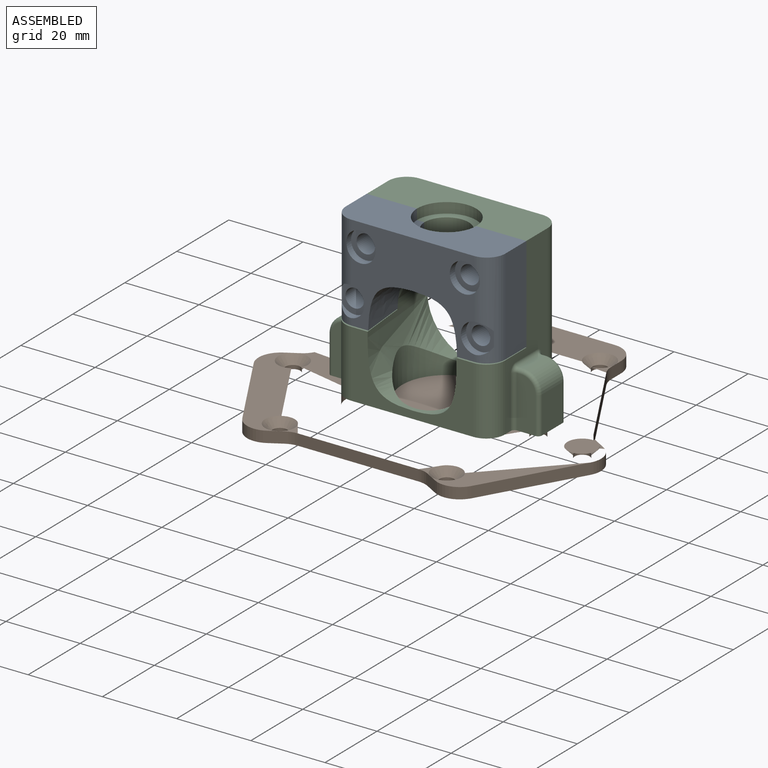
[diagram: assembled view]
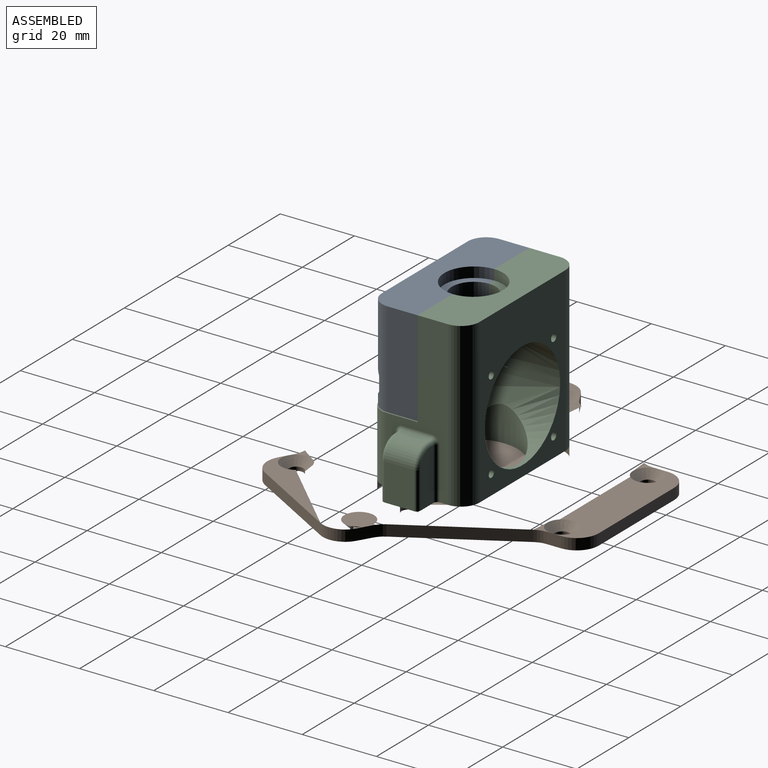
[diagram: assembled view, second angle]
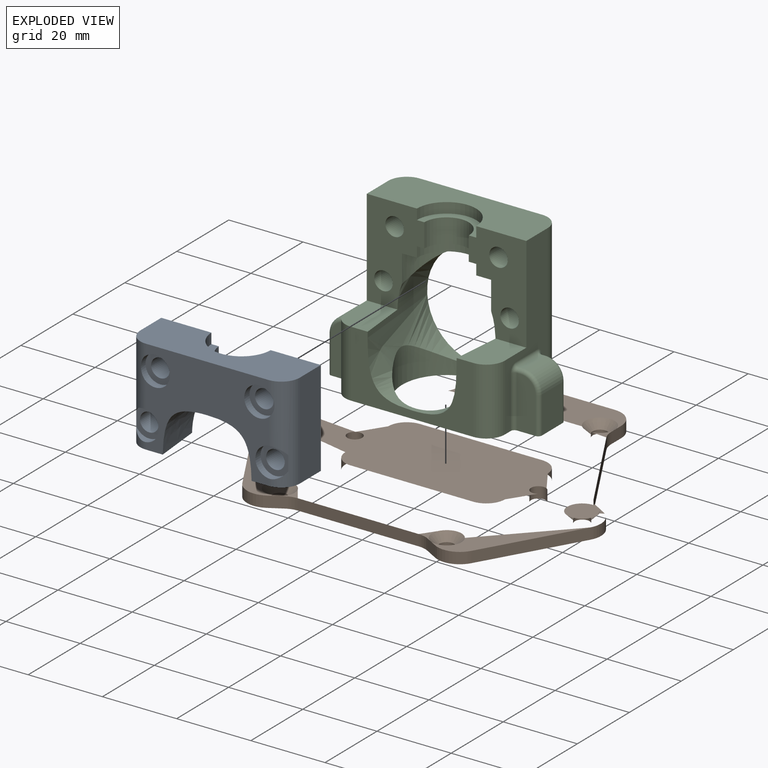
[diagram: exploded view]
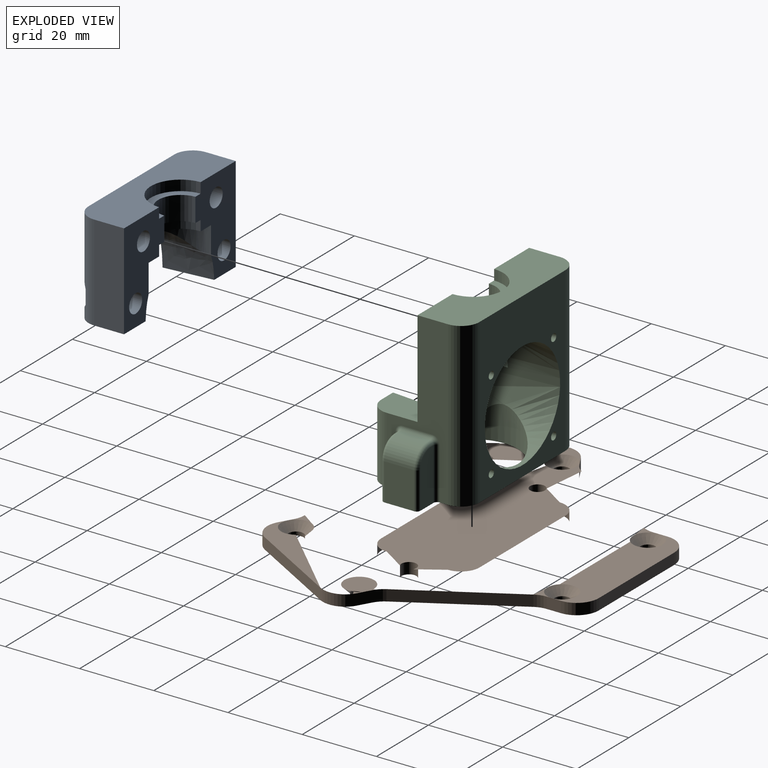
[diagram: exploded view, second angle]
ASSEMBLY  parts=3 mates=4
PART A: 30 faces, bbox 43.6x13.7x27 mm
  f0: plane 43x13.05mm, normal (0,0,1), area 453.1mm2, adj f1,f3,f4,f5,f6,f7,f8,f23
  f1: plane 26.39x16.09mm, normal (0,1,0), area 261.5mm2, adj f0,f7,f9,f10,f13,f22,f23,f24
  f2: plane 13.11x9.58mm, normal (0,0,-1), area 111mm2, adj f3,f5,f6,f8,f22
  f3: plane 33.1x25.9mm, normal (0,-1,0), area 454.7mm2, adj f0,f2,f4,f5,f9,f12,f15,f18
  f4: cylinder r=5mm len=25.8mm, axis (0,0,1), area 168.7mm2, adj f0,f3,f7,f9,f12,f14,f15
  f5: cylinder r=5mm len=25.8mm, axis (0,0,-1), area 168.7mm2, adj f0,f2,f3,f6,f17,f18,f21
  f6: plane 25.8x8.05mm, normal (1,0,0), area 207.7mm2, adj f0,f2,f5,f8
  f7: plane 25.8x8.05mm, normal (-1,0,0), area 207.7mm2, adj f0,f1,f4,f9
  f8: plane 26.41x16.11mm, normal (0,1,0), area 261.9mm2, adj f0,f2,f6,f16,f19,f22,f23,f24
  f9: plane 13.11x9.58mm, normal (0,0,-1), area 110.8mm2, adj f1,f3,f4,f7,f22
  f10: cylinder r=2.5mm len=11.05mm, axis (0,-1,0), area 173.6mm2, adj f1,f11
  f11: plane 8x8mm, normal (0,-1,0), area 30.6mm2, adj f10,f12
  f12: cylinder r=4mm len=8mm, axis (0,-1,0), area 50.3mm2, adj f3,f4,f11
  f13: cylinder r=2.5mm len=11.05mm, axis (0,-1,0), area 173.6mm2, adj f1,f14
  f14: plane 8x7.5mm, normal (0,-1,0), area 29.3mm2, adj f4,f13,f15
  f15: cylinder r=4mm len=8mm, axis (0,-1,0), area 32.7mm2, adj f3,f4,f14
  f16: cylinder r=2.5mm len=11.05mm, axis (0,-1,0), area 173.6mm2, adj f8,f17
  f17: plane 8x7.5mm, normal (0,-1,0), area 29.3mm2, adj f5,f16,f18
  f18: cylinder r=4mm len=8mm, axis (0,-1,0), area 32.7mm2, adj f3,f5,f17
  f19: cylinder r=2.5mm len=11.05mm, axis (0,-1,0), area 173.6mm2, adj f8,f20
  f20: plane 8x8mm, normal (0,-1,0), area 30.6mm2, adj f19,f21
  f21: cylinder r=4mm len=8mm, axis (0,-1,0), area 50.3mm2, adj f3,f5,f20
  f22: bspline ~26.41x13.81mm, area 295.7mm2, adj f1,f2,f3,f8,f9,f29
  f23: cylinder r=8mm len=16mm, axis (0,0,-1), area 69.3mm2, adj f0,f1,f8,f24
  f24: plane 16x7.8mm, normal (0,0,1), area 43.2mm2, adj f1,f8,f23,f25
  f25: cylinder r=6mm len=11.99mm, axis (0,0,-1), area 118.1mm2, adj f1,f8,f24,f26
  f26: plane 16x7.8mm, normal (0,0,-1), area 43.2mm2, adj f1,f8,f25,f27
  f27: cylinder r=8mm len=16mm, axis (0,0,-1), area 69.3mm2, adj f1,f8,f26,f28
  f28: plane 24x11.8mm, normal (0,0,-1), area 124.1mm2, adj f1,f8,f27,f29
  f29: cylinder r=12mm len=24mm, axis (0,0,-1), area 132.5mm2, adj f1,f8,f22,f28
PART B: 48 faces, bbox 92.3x81.6x3 mm
  f0: plane 33x3mm, normal (0,-1,0), area 99mm2, adj f16,f17,f30,f33
  f1: plane 16.5x3mm, normal (-1,0,0), area 49.5mm2, adj f16,f17,f30,f31
  f2: plane 33x3mm, normal (0,1,0), area 99mm2, adj f16,f17,f31,f32
  f3: plane 29x3mm, normal (0,1,0), area 87mm2, adj f16,f17,f18,f29
  f4: plane 3.9x3mm, normal (-1,0,0), area 11.7mm2, adj f16,f17,f18,f19
  f5: plane 28.2x16.28mm, normal (-0.87,0.5,0), area 97.7mm2, adj f16,f17,f19,f20
  f6: plane 3.38x3mm, normal (-0.5,0.87,0), area 11.7mm2, adj f16,f17,f20,f21
  f7: plane 25.11x14.5mm, normal (-0.87,-0.5,0), area 87mm2, adj f16,f17,f21,f22
  f8: plane 3.38x3mm, normal (0.5,-0.87,0), area 11.7mm2, adj f16,f17,f22,f23
  f9: plane 32.56x3mm, normal (0,-1,0), area 97.7mm2, adj f16,f17,f23,f24
  f10: plane 3.38x3mm, normal (-0.5,-0.87,0), area 11.7mm2, adj f16,f17,f24,f25
  f11: plane 25.11x14.5mm, normal (0.87,-0.5,0), area 87mm2, adj f16,f17,f25,f26
  f12: plane 3.38x3mm, normal (0.5,0.87,0), area 11.7mm2, adj f16,f17,f26,f27
  f13: plane 28.2x16.28mm, normal (0.87,0.5,0), area 97.7mm2, adj f16,f17,f27,f28
  f14: plane 3.9x3mm, normal (1,0,0), area 11.7mm2, adj f16,f17,f28,f29
  f15: plane 16.5x3mm, normal (1,0,0), area 49.5mm2, adj f16,f17,f32,f33
  f16: plane 92.32x81.56mm, normal (0,0,1), area 3748.6mm2, adj f0,f1,f2,f3,f4,f5,f6,f7
  f17: plane 92.32x81.56mm, normal (0,0,-1), area 3974.8mm2, adj f0,f1,f2,f3,f4,f5,f6,f7
  f18: cylinder r=6mm len=6mm, axis (0,0,-1), area 28.3mm2, adj f3,f4,f16,f17
  f19: cylinder r=6mm len=3mm, axis (0,0,1), area 9.4mm2, adj f4,f5,f16,f17
  f20: cylinder r=6mm len=3mm, axis (0,0,1), area 9.4mm2, adj f5,f6,f16,f17
  f21: cylinder r=6mm len=8.2mm, axis (0,0,-1), area 28.3mm2, adj f6,f7,f16,f17
  f22: cylinder r=6mm len=8.2mm, axis (0,0,-1), area 28.3mm2, adj f7,f8,f16,f17
  f23: cylinder r=6mm len=3mm, axis (0,0,-1), area 9.4mm2, adj f8,f9,f16,f17
  f24: cylinder r=6mm len=3mm, axis (0,0,-1), area 9.4mm2, adj f9,f10,f16,f17
  f25: cylinder r=6mm len=8.2mm, axis (0,0,-1), area 28.3mm2, adj f10,f11,f16,f17
  f26: cylinder r=6mm len=8.2mm, axis (0,0,-1), area 28.3mm2, adj f11,f12,f16,f17
  f27: cylinder r=6mm len=3mm, axis (0,0,1), area 9.4mm2, adj f12,f13,f16,f17
  f28: cylinder r=6mm len=3mm, axis (0,0,1), area 9.4mm2, adj f13,f14,f16,f17
  f29: cylinder r=6mm len=6mm, axis (0,0,-1), area 28.3mm2, adj f3,f14,f16,f17
  f30: cylinder r=5mm len=5mm, axis (0,0,-1), area 23.6mm2, adj f0,f1,f16,f17
  f31: cylinder r=5mm len=5mm, axis (0,0,1), area 23.6mm2, adj f1,f2,f16,f17
  f32: cylinder r=5mm len=5mm, axis (0,0,-1), area 23.6mm2, adj f2,f15,f16,f17
  f33: cylinder r=5mm len=5mm, axis (0,0,1), area 23.6mm2, adj f0,f15,f16,f17
  f34: cylinder r=2mm len=4mm, axis (0,0,1), area 12.6mm2, adj f17,f35
  f35: cone r=2mm half-angle=45deg, axis (0,0,1), area 53.3mm2, adj f16,f34
  f36: cylinder r=2mm len=4mm, axis (0,0,1), area 12.6mm2, adj f17,f37
  f37: cone r=2mm half-angle=45deg, axis (0,0,1), area 53.3mm2, adj f16,f36
  f38: cylinder r=2mm len=4mm, axis (0,0,1), area 12.6mm2, adj f17,f39
  f39: cone r=2mm half-angle=45deg, axis (0,0,1), area 53.3mm2, adj f16,f38
  f40: cylinder r=2mm len=4mm, axis (0,0,1), area 12.6mm2, adj f17,f41
  f41: cone r=2mm half-angle=45deg, axis (0,0,1), area 53.3mm2, adj f16,f40
  f42: cylinder r=2mm len=4mm, axis (0,0,1), area 12.6mm2, adj f17,f43
  f43: cone r=2mm half-angle=45deg, axis (0,0,1), area 53.3mm2, adj f16,f42
  f44: cylinder r=2mm len=4mm, axis (0,0,1), area 12.6mm2, adj f17,f45
  f45: cone r=2mm half-angle=45deg, axis (0,0,1), area 53.3mm2, adj f16,f44
  f46: cylinder r=2mm len=4mm, axis (0,0,1), area 37.7mm2, adj f16,f17
  f47: cylinder r=2mm len=4mm, axis (0,0,1), area 37.7mm2, adj f16,f17
PART C: 81 faces, bbox 58.5x27.1x44.6 mm
  f0: plane 43x13.25mm, normal (0,0,1), area 458.5mm2, adj f1,f2,f4,f5,f10,f11,f62,f74
  f1: plane 26.63x16.13mm, normal (0,-1,0), area 263mm2, adj f0,f5,f63,f65,f67,f72,f74,f75
  f2: plane 44x33mm, normal (0,1,0), area 778.9mm2, adj f0,f9,f10,f11,f55,f57,f59,f61
  f3: plane 13.32x9.58mm, normal (0,0,1), area 112.6mm2, adj f4,f6,f8,f62,f72
  f4: plane 44x16.5mm, normal (1,0,0), area 321.2mm2, adj f0,f3,f8,f9,f10,f24,f26,f27
  f5: plane 44x16.5mm, normal (-1,0,0), area 321.2mm2, adj f0,f1,f7,f9,f11,f35,f37,f38
  f6: plane 33.12x18.12mm, normal (0,-1,0), area 250.4mm2, adj f3,f7,f8,f9,f63,f72
  f7: cylinder r=5mm len=18mm, axis (0,0,1), area 141.4mm2, adj f5,f6,f9,f63
  f8: cylinder r=5mm len=18mm, axis (0,0,-1), area 141.4mm2, adj f3,f4,f6,f9
  f9: plane 57x26.5mm, normal (0,0,-1), area 523.3mm2, adj f2,f4,f5,f6,f7,f8,f10,f11
  f10: cylinder r=5mm len=44mm, axis (0,0,1), area 345.6mm2, adj f0,f2,f4,f9
  f11: cylinder r=5mm len=44mm, axis (0,0,-1), area 345.6mm2, adj f0,f2,f5,f9
  f12: plane 14x5mm, normal (0,-1,0), area 66.6mm2, adj f9,f27,f30,f31,f32
  f13: plane 14x5mm, normal (0,1,0), area 66.6mm2, adj f9,f22,f23,f24,f25
  f14: plane 8x1mm, normal (0,0,1), area 8mm2, adj f21,f25,f28,f31
  f15: plane 10x8mm, normal (1,0,0), area 80mm2, adj f9,f21,f22,f30
  f16: plane 14x5mm, normal (0,1,0), area 66.6mm2, adj f9,f38,f41,f42,f43
  f17: plane 14x5mm, normal (0,-1,0), area 66.6mm2, adj f9,f33,f34,f35,f36
  f18: plane 8x1mm, normal (0,0,1), area 8mm2, adj f20,f36,f39,f42
  f19: plane 10x8mm, normal (-1,0,0), area 80mm2, adj f9,f20,f33,f41
  f20: cylinder r=5mm len=8mm, axis (0,-1,0), area 62.8mm2, adj f18,f19,f34,f43
  f21: cylinder r=5mm len=8mm, axis (0,1,0), area 62.8mm2, adj f14,f15,f23,f32
  f22: cylinder r=1mm len=10mm, axis (0,0,-1), area 15.7mm2, adj f9,f13,f15,f23
  f23: torus R=4mm, axis (0,1,0), area 11.4mm2, adj f13,f21,f22,f25
  f24: cylinder r=1mm len=14mm, axis (0,0,1), area 22mm2, adj f4,f9,f13,f26
  f25: cylinder r=1mm len=1mm, axis (-1,0,0), area 1.6mm2, adj f13,f14,f23,f26
  f26: torus R=2mm, axis (1,0,0), area 3.4mm2, adj f4,f24,f25,f28
  f27: cylinder r=1mm len=14mm, axis (0,0,-1), area 22mm2, adj f4,f9,f12,f29
  f28: cylinder r=1mm len=8mm, axis (0,-1,0), area 12.6mm2, adj f4,f14,f26,f29
  f29: torus R=2mm, axis (1,0,0), area 3.4mm2, adj f4,f27,f28,f31
  f30: cylinder r=1mm len=10mm, axis (0,0,1), area 15.7mm2, adj f9,f12,f15,f32
  f31: cylinder r=1mm len=1mm, axis (-1,0,0), area 1.6mm2, adj f12,f14,f29,f32
  f32: torus R=4mm, axis (0,-1,0), area 11.4mm2, adj f12,f21,f30,f31
  f33: cylinder r=1mm len=10mm, axis (0,0,-1), area 15.7mm2, adj f9,f17,f19,f34
  f34: torus R=4mm, axis (0,-1,0), area 11.4mm2, adj f17,f20,f33,f36
  f35: cylinder r=1mm len=14mm, axis (0,0,-1), area 22mm2, adj f5,f9,f17,f37
  f36: cylinder r=1mm len=1mm, axis (1,0,0), area 1.6mm2, adj f17,f18,f34,f37
  f37: torus R=2mm, axis (1,0,0), area 3.4mm2, adj f5,f35,f36,f39
  f38: cylinder r=1mm len=14mm, axis (0,0,1), area 22mm2, adj f5,f9,f16,f40
  f39: cylinder r=1mm len=8mm, axis (0,-1,0), area 12.6mm2, adj f5,f18,f37,f40
  f40: torus R=2mm, axis (1,0,0), area 3.4mm2, adj f5,f38,f39,f42
  f41: cylinder r=1mm len=10mm, axis (0,0,1), area 15.7mm2, adj f9,f16,f19,f43
  f42: cylinder r=1mm len=1mm, axis (1,0,0), area 1.6mm2, adj f16,f18,f40,f43
  f43: torus R=4mm, axis (0,1,0), area 11.4mm2, adj f16,f20,f41,f42
  f44: cone r=0mm half-angle=59deg, axis (0,0,-1), area 22.9mm2, adj f45
  f45: cylinder r=2.5mm len=10mm, axis (0,0,-1), area 157.1mm2, adj f9,f44
  f46: cone r=0mm half-angle=59deg, axis (0,0,-1), area 22.9mm2, adj f47
  f47: cylinder r=2.5mm len=10mm, axis (0,0,-1), area 157.1mm2, adj f9,f46
  f48: plane 14x2mm, normal (-1,0,0), area 28mm2, adj f9,f49,f52,f53
  f49: cylinder r=5mm len=5mm, axis (0,0,-1), area 15.7mm2, adj f9,f48,f50,f53
  f50: plane 15x2mm, normal (0,1,0), area 30mm2, adj f9,f49,f53,f73
  f51: plane 15x2mm, normal (0,-1,0), area 30mm2, adj f9,f52,f53,f73
  f52: cylinder r=5mm len=5mm, axis (0,0,-1), area 15.7mm2, adj f9,f48,f51,f53
  f53: plane 24x20mm, normal (0,0,-1), area 243.1mm2, adj f48,f49,f50,f51,f52,f73
  f54: cone r=0mm half-angle=59deg, axis (0,1,0), area 3.7mm2, adj f55
  f55: cylinder r=1mm len=5mm, axis (0,1,0), area 31.4mm2, adj f2,f54
  f56: cone r=0mm half-angle=59deg, axis (0,1,0), area 3.7mm2, adj f57
  f57: cylinder r=1mm len=5mm, axis (0,1,0), area 31.4mm2, adj f2,f56
  f58: cone r=0mm half-angle=59deg, axis (0,1,0), area 3.7mm2, adj f59
  f59: cylinder r=1mm len=5mm, axis (0,1,0), area 31.4mm2, adj f2,f58
  f60: cone r=0mm half-angle=59deg, axis (0,1,0), area 3.7mm2, adj f61
  f61: cylinder r=1mm len=5mm, axis (0,1,0), area 31.4mm2, adj f2,f60
  f62: plane 26.65x16.15mm, normal (0,-1,0), area 263.4mm2, adj f0,f3,f4,f69,f71,f72,f74,f75
  f63: plane 13.31x9.57mm, normal (0,0,1), area 112.4mm2, adj f1,f5,f6,f7,f72
  f64: cone r=0mm half-angle=59deg, axis (0,-1,0), area 22.9mm2, adj f65
  f65: cylinder r=2.5mm len=6mm, axis (0,-1,0), area 94.2mm2, adj f1,f64
  f66: cone r=0mm half-angle=59deg, axis (0,-1,0), area 22.9mm2, adj f67
  f67: cylinder r=2.5mm len=6mm, axis (0,-1,0), area 94.2mm2, adj f1,f66
  f68: cone r=0mm half-angle=59deg, axis (0,-1,0), area 22.9mm2, adj f69
  f69: cylinder r=2.5mm len=6mm, axis (0,-1,0), area 94.2mm2, adj f62,f68
  f70: cone r=0mm half-angle=59deg, axis (0,-1,0), area 22.9mm2, adj f71
  f71: cylinder r=2.5mm len=6mm, axis (0,-1,0), area 94.2mm2, adj f62,f70
  f72: bspline ~29.79x28.97mm, area 1063.4mm2, adj f1,f2,f3,f6,f62,f63,f73,f80
  f73: cylinder r=12mm len=24mm, axis (0,0,-1), area 321mm2, adj f9,f50,f51,f53,f72
  f74: cylinder r=8mm len=16mm, axis (0,0,-1), area 70.4mm2, adj f0,f1,f62,f75
  f75: plane 16x8mm, normal (0,0,1), area 44mm2, adj f1,f62,f74,f76
  f76: cylinder r=6mm len=12mm, axis (0,0,-1), area 120.6mm2, adj f1,f62,f75,f77
  f77: plane 16x8mm, normal (0,0,-1), area 44mm2, adj f1,f62,f76,f78
  f78: cylinder r=8mm len=16mm, axis (0,0,-1), area 70.4mm2, adj f1,f62,f77,f79
  f79: plane 24x12mm, normal (0,0,-1), area 125.7mm2, adj f1,f62,f78,f80
  f80: cylinder r=12mm len=24mm, axis (0,0,-1), area 124.9mm2, adj f1,f62,f72,f79
PLACE A t=(-21.71,-4.89,-11.36)mm
PLACE B t=(-21.71,-5.09,-14.36)mm
PLACE C t=(-21.71,-5.09,-11.36)mm
MATE planar B.f16 <-> C.f9  axis (0,0,1) through (-21.71,-18.34,-11.36)mm
MATE cylindrical A.f19 <-> C.f70  axis (0,1,0) through (-7.71,-5.09,26.64)mm
MATE cylindrical B.f47 <-> C.f46  axis (0,0,1) through (-46.46,-5.09,-11.36)mm
MATE planar A.f8 <-> C.f62  axis (0,1,0) through (-15.71,-5.09,26.64)mm
